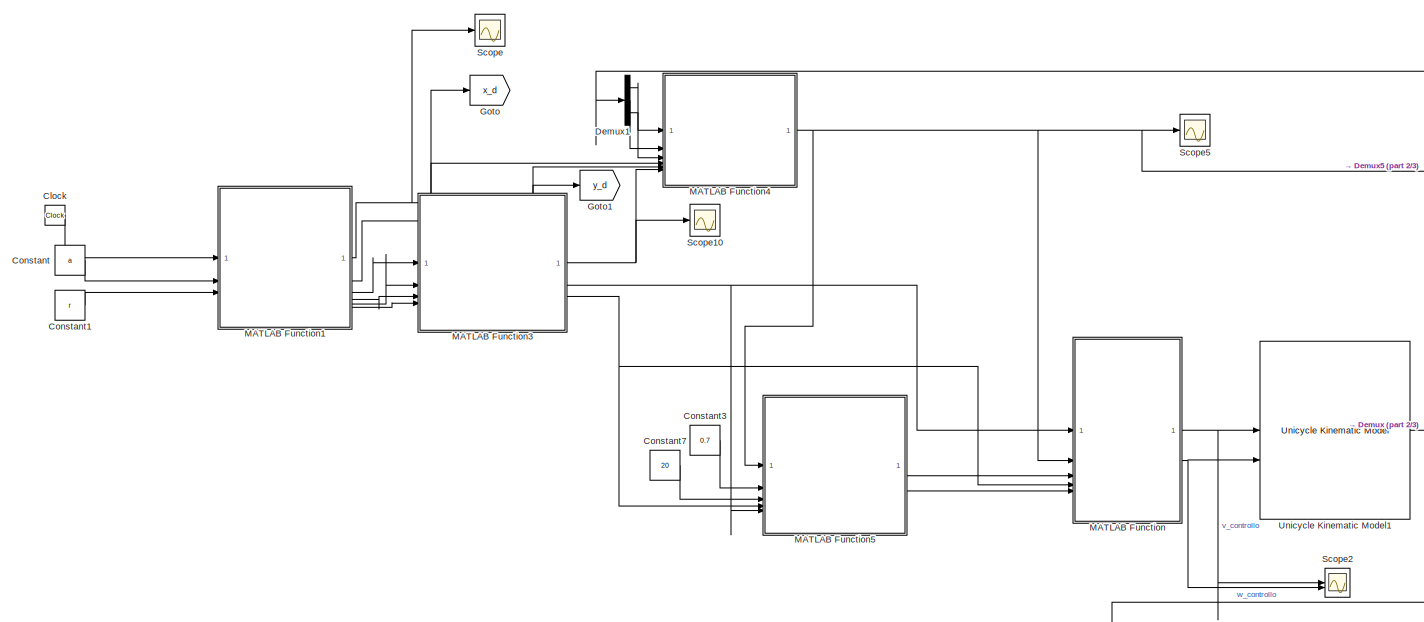
[diagram: root canvas - part 1/3, top left region]
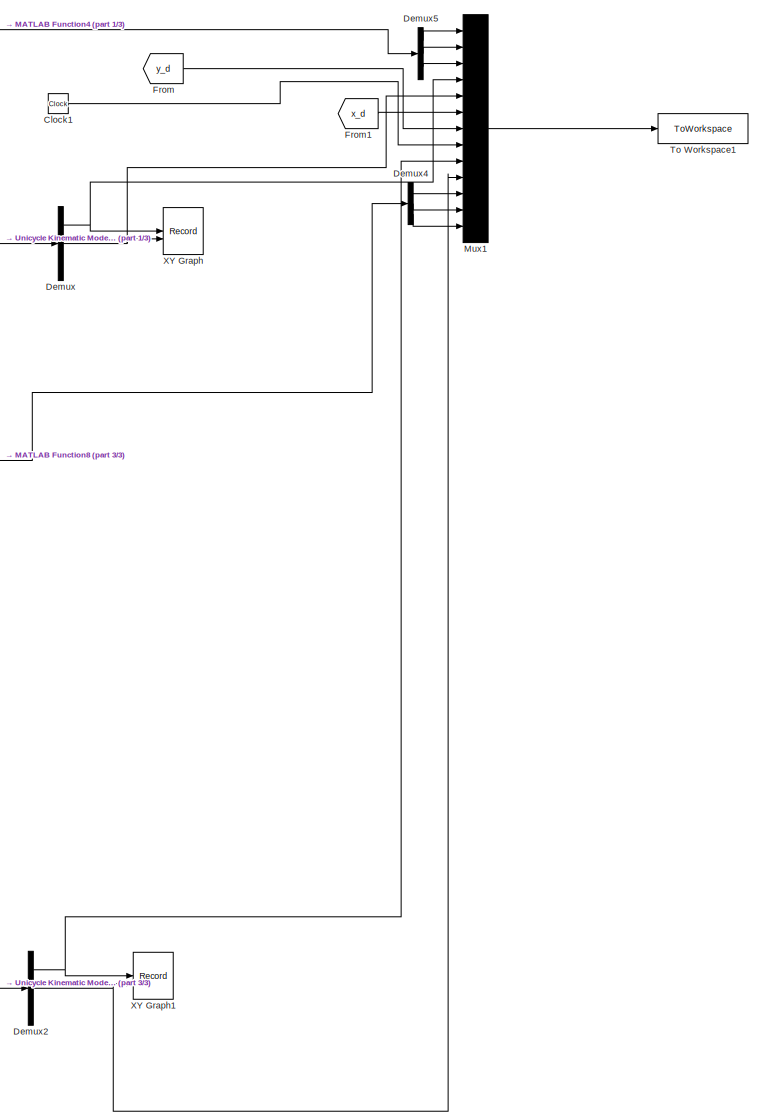
[diagram: root canvas - part 2/3, right side, full height]
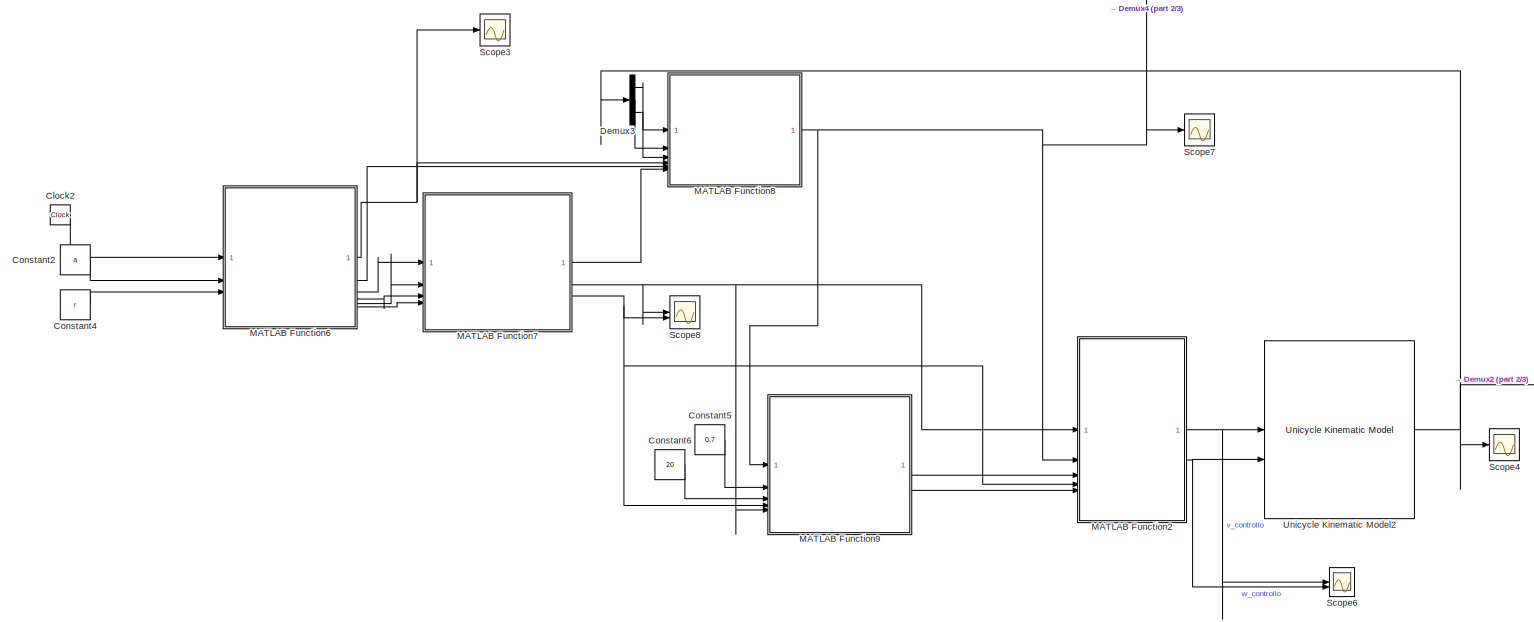
[diagram: root canvas - part 3/3, bottom center region]
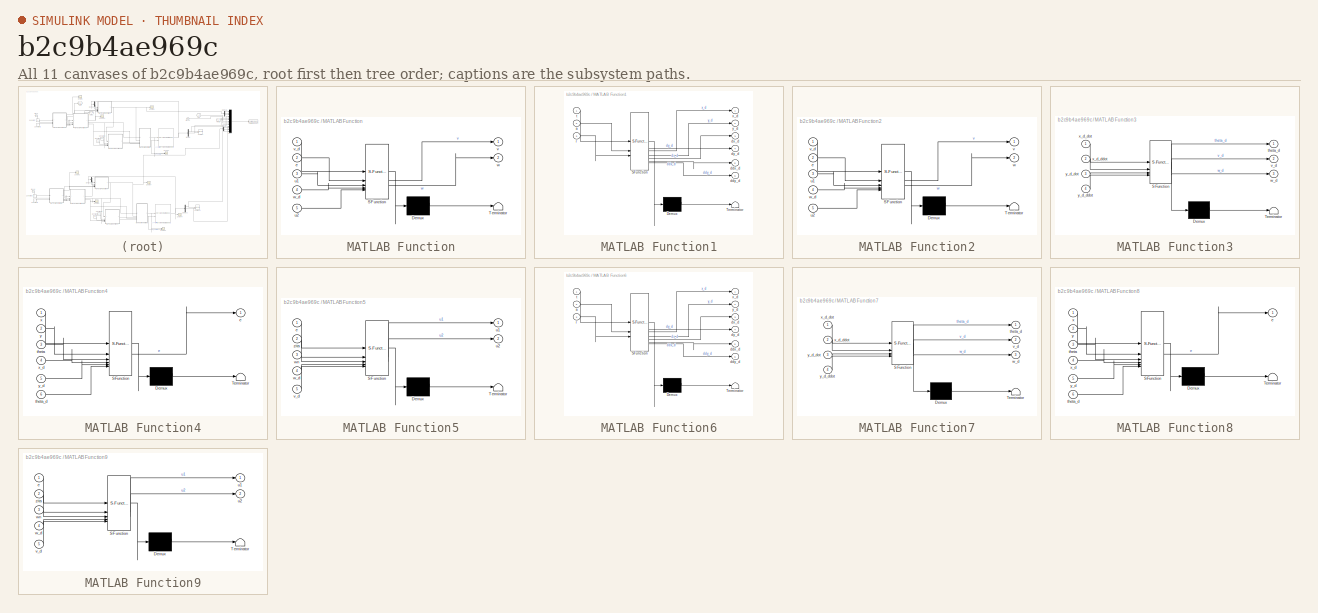
[diagram: thumbnail index - all 11 canvases of the model, root first then tree order]
MODEL slx_b2c9b4ae969c
KIND model
CONFIG AbsTol = auto
CONFIG EnableMultiTasking = off
CONFIG FixedStep = auto
CONFIG MaxStep = auto
CONFIG MinStep = auto
CONFIG RelTol = 1e-3
CONFIG SampleTimeConstraint = Unconstrained
CONFIG SolverName = VariableStepAuto
CONFIG StartTime = 0.0
CONFIG StopTime = 2*pi
BLOCK [Clock] Clock
BLOCK [Clock] Clock1
BLOCK [Clock] Clock2
BLOCK [Constant] Constant
  Value = a
BLOCK [Constant] Constant1
  Value = r
BLOCK [Constant] Constant2
  Value = a
BLOCK [Constant] Constant3
  Value = 0.7
BLOCK [Constant] Constant4
  Value = r
BLOCK [Constant] Constant5
  Value = 0.7
BLOCK [Constant] Constant6
  Value = 20
BLOCK [Constant] Constant7
  Value = 20
BLOCK [Demux] Demux
  Outputs = 3
BLOCK [Demux] Demux1
  NameLocation = right
  Outputs = 3
BLOCK [Demux] Demux2
  Outputs = 3
BLOCK [Demux] Demux3
  NameLocation = right
  Outputs = 3
BLOCK [Demux] Demux4
  NameLocation = right
  Outputs = 3
BLOCK [Demux] Demux5
  NameLocation = right
  Outputs = 3
BLOCK [From] From
  GotoTag = y_d
BLOCK [From] From1
  GotoTag = x_d
BLOCK [Goto] Goto
  GotoTag = x_d
BLOCK [Goto] Goto1
  GotoTag = y_d
BLOCK [SubSystem] MATLAB Function
  ErrorFcn = Stateflow.Translate.translate
  PermitHierarchicalResolution = ExplicitOnly
  SFBlockType = MATLAB Function
  TreatAsAtomicUnit = on
BLOCK [Demux] MATLAB Function/ Demux 
  Outputs = 1
BLOCK [S-Function] MATLAB Function/ SFunction 
  EnableBusSupport = on
  FunctionName = sf_sfun
  PortCounts = [5 3]
  SFcnIsStateOwnerBlock = off
  SFunctionDeploymentMode = off
  Tag = Stateflow S-Function 2
BLOCK [Terminator] MATLAB Function/ Terminator 
BLOCK [Inport] MATLAB Function/e
  Port = 2
BLOCK [Inport] MATLAB Function/u1
  Port = 3
BLOCK [Inport] MATLAB Function/u2
  Port = 5
BLOCK [Outport] MATLAB Function/v
BLOCK [Inport] MATLAB Function/v_d
BLOCK [Outport] MATLAB Function/w
  Port = 2
BLOCK [Inport] MATLAB Function/w_d
  Port = 4
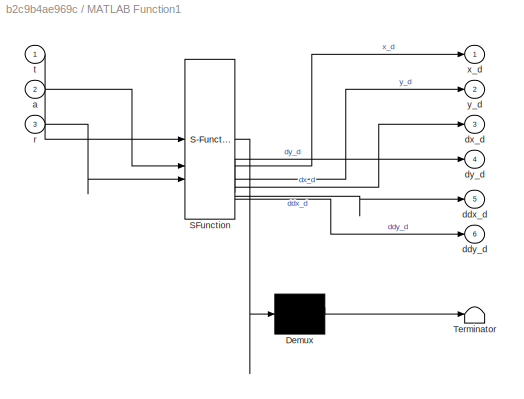
BLOCK [SubSystem] MATLAB Function1
  ErrorFcn = Stateflow.Translate.translate
  PermitHierarchicalResolution = ExplicitOnly
  SFBlockType = MATLAB Function
  TreatAsAtomicUnit = on
BLOCK [Demux] MATLAB Function1/ Demux 
  Outputs = 1
BLOCK [S-Function] MATLAB Function1/ SFunction 
  EnableBusSupport = on
  FunctionName = sf_sfun
  PortCounts = [3 7]
  SFcnIsStateOwnerBlock = off
  SFunctionDeploymentMode = off
  Tag = Stateflow S-Function 1
BLOCK [Terminator] MATLAB Function1/ Terminator 
BLOCK [Inport] MATLAB Function1/a
  Port = 2
BLOCK [Outport] MATLAB Function1/ddx_d
  Port = 5
BLOCK [Outport] MATLAB Function1/ddy_d
  Port = 6
BLOCK [Outport] MATLAB Function1/dx_d
  Port = 3
BLOCK [Outport] MATLAB Function1/dy_d
  Port = 4
BLOCK [Inport] MATLAB Function1/r
  Port = 3
BLOCK [Inport] MATLAB Function1/t
BLOCK [Outport] MATLAB Function1/x_d
BLOCK [Outport] MATLAB Function1/y_d
  Port = 2
BLOCK [SubSystem] MATLAB Function2
  ErrorFcn = Stateflow.Translate.translate
  PermitHierarchicalResolution = ExplicitOnly
  SFBlockType = MATLAB Function
  TreatAsAtomicUnit = on
BLOCK [Demux] MATLAB Function2/ Demux 
  Outputs = 1
BLOCK [S-Function] MATLAB Function2/ SFunction 
  EnableBusSupport = on
  FunctionName = sf_sfun
  PortCounts = [5 3]
  SFcnIsStateOwnerBlock = off
  SFunctionDeploymentMode = off
  Tag = Stateflow S-Function 3
BLOCK [Terminator] MATLAB Function2/ Terminator 
BLOCK [Inport] MATLAB Function2/e
  Port = 2
BLOCK [Inport] MATLAB Function2/u1
  Port = 3
BLOCK [Inport] MATLAB Function2/u2
  Port = 5
BLOCK [Outport] MATLAB Function2/v
BLOCK [Inport] MATLAB Function2/v_d
BLOCK [Outport] MATLAB Function2/w
  Port = 2
BLOCK [Inport] MATLAB Function2/w_d
  Port = 4
BLOCK [SubSystem] MATLAB Function3
  ErrorFcn = Stateflow.Translate.translate
  PermitHierarchicalResolution = ExplicitOnly
  SFBlockType = MATLAB Function
  TreatAsAtomicUnit = on
BLOCK [Demux] MATLAB Function3/ Demux 
  Outputs = 1
BLOCK [S-Function] MATLAB Function3/ SFunction 
  EnableBusSupport = on
  FunctionName = sf_sfun
  PortCounts = [4 4]
  SFcnIsStateOwnerBlock = off
  SFunctionDeploymentMode = off
  Tag = Stateflow S-Function 4
BLOCK [Terminator] MATLAB Function3/ Terminator 
BLOCK [Outport] MATLAB Function3/theta_d
BLOCK [Outport] MATLAB Function3/v_d
  Port = 2
BLOCK [Outport] MATLAB Function3/w_d
  Port = 3
BLOCK [Inport] MATLAB Function3/x_d_ddot
  Port = 2
BLOCK [Inport] MATLAB Function3/x_d_dot
BLOCK [Inport] MATLAB Function3/y_d_ddot
  Port = 4
BLOCK [Inport] MATLAB Function3/y_d_dot
  Port = 3
BLOCK [SubSystem] MATLAB Function4
  ErrorFcn = Stateflow.Translate.translate
  PermitHierarchicalResolution = ExplicitOnly
  SFBlockType = MATLAB Function
  TreatAsAtomicUnit = on
BLOCK [Demux] MATLAB Function4/ Demux 
  Outputs = 1
BLOCK [S-Function] MATLAB Function4/ SFunction 
  EnableBusSupport = on
  FunctionName = sf_sfun
  PortCounts = [6 2]
  SFcnIsStateOwnerBlock = off
  SFunctionDeploymentMode = off
  Tag = Stateflow S-Function 5
BLOCK [Terminator] MATLAB Function4/ Terminator 
BLOCK [Outport] MATLAB Function4/e
BLOCK [Inport] MATLAB Function4/theta
  Port = 3
BLOCK [Inport] MATLAB Function4/theta_d
  Port = 6
BLOCK [Inport] MATLAB Function4/x
BLOCK [Inport] MATLAB Function4/x_d
  Port = 4
BLOCK [Inport] MATLAB Function4/y
  Port = 2
BLOCK [Inport] MATLAB Function4/y_d
  Port = 5
BLOCK [SubSystem] MATLAB Function5
  ErrorFcn = Stateflow.Translate.translate
  PermitHierarchicalResolution = ExplicitOnly
  SFBlockType = MATLAB Function
  TreatAsAtomicUnit = on
BLOCK [Demux] MATLAB Function5/ Demux 
  Outputs = 1
BLOCK [S-Function] MATLAB Function5/ SFunction 
  EnableBusSupport = on
  FunctionName = sf_sfun
  PortCounts = [5 3]
  SFcnIsStateOwnerBlock = off
  SFunctionDeploymentMode = off
  Tag = Stateflow S-Function 6
BLOCK [Terminator] MATLAB Function5/ Terminator 
BLOCK [Inport] MATLAB Function5/e
BLOCK [Outport] MATLAB Function5/u1
BLOCK [Outport] MATLAB Function5/u2
  Port = 2
BLOCK [Inport] MATLAB Function5/v_d
  Port = 5
BLOCK [Inport] MATLAB Function5/w_d
  Port = 4
BLOCK [Inport] MATLAB Function5/wn
  Port = 3
BLOCK [Inport] MATLAB Function5/zita
  Port = 2
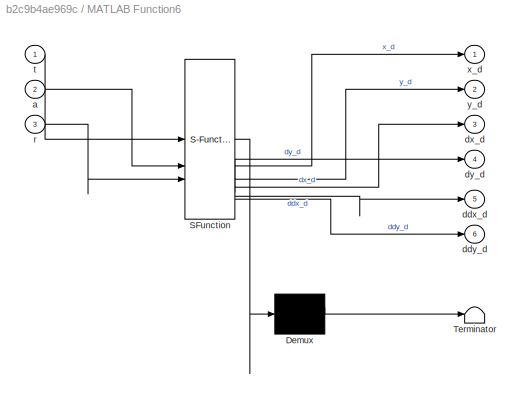
BLOCK [SubSystem] MATLAB Function6
  ErrorFcn = Stateflow.Translate.translate
  PermitHierarchicalResolution = ExplicitOnly
  SFBlockType = MATLAB Function
  TreatAsAtomicUnit = on
BLOCK [Demux] MATLAB Function6/ Demux 
  Outputs = 1
BLOCK [S-Function] MATLAB Function6/ SFunction 
  EnableBusSupport = on
  FunctionName = sf_sfun
  PortCounts = [3 7]
  SFcnIsStateOwnerBlock = off
  SFunctionDeploymentMode = off
  Tag = Stateflow S-Function 7
BLOCK [Terminator] MATLAB Function6/ Terminator 
BLOCK [Inport] MATLAB Function6/a
  Port = 2
BLOCK [Outport] MATLAB Function6/ddx_d
  Port = 5
BLOCK [Outport] MATLAB Function6/ddy_d
  Port = 6
BLOCK [Outport] MATLAB Function6/dx_d
  Port = 3
BLOCK [Outport] MATLAB Function6/dy_d
  Port = 4
BLOCK [Inport] MATLAB Function6/r
  Port = 3
BLOCK [Inport] MATLAB Function6/t
BLOCK [Outport] MATLAB Function6/x_d
BLOCK [Outport] MATLAB Function6/y_d
  Port = 2
BLOCK [SubSystem] MATLAB Function7
  ErrorFcn = Stateflow.Translate.translate
  PermitHierarchicalResolution = ExplicitOnly
  SFBlockType = MATLAB Function
  TreatAsAtomicUnit = on
BLOCK [Demux] MATLAB Function7/ Demux 
  Outputs = 1
BLOCK [S-Function] MATLAB Function7/ SFunction 
  EnableBusSupport = on
  FunctionName = sf_sfun
  PortCounts = [4 4]
  SFcnIsStateOwnerBlock = off
  SFunctionDeploymentMode = off
  Tag = Stateflow S-Function 8
BLOCK [Terminator] MATLAB Function7/ Terminator 
BLOCK [Outport] MATLAB Function7/theta_d
BLOCK [Outport] MATLAB Function7/v_d
  Port = 2
BLOCK [Outport] MATLAB Function7/w_d
  Port = 3
BLOCK [Inport] MATLAB Function7/x_d_ddot
  Port = 2
BLOCK [Inport] MATLAB Function7/x_d_dot
BLOCK [Inport] MATLAB Function7/y_d_ddot
  Port = 4
BLOCK [Inport] MATLAB Function7/y_d_dot
  Port = 3
BLOCK [SubSystem] MATLAB Function8
  ErrorFcn = Stateflow.Translate.translate
  PermitHierarchicalResolution = ExplicitOnly
  SFBlockType = MATLAB Function
  TreatAsAtomicUnit = on
BLOCK [Demux] MATLAB Function8/ Demux 
  Outputs = 1
BLOCK [S-Function] MATLAB Function8/ SFunction 
  EnableBusSupport = on
  FunctionName = sf_sfun
  PortCounts = [6 2]
  SFcnIsStateOwnerBlock = off
  SFunctionDeploymentMode = off
  Tag = Stateflow S-Function 9
BLOCK [Terminator] MATLAB Function8/ Terminator 
BLOCK [Outport] MATLAB Function8/e
BLOCK [Inport] MATLAB Function8/theta
  Port = 3
BLOCK [Inport] MATLAB Function8/theta_d
  Port = 6
BLOCK [Inport] MATLAB Function8/x
BLOCK [Inport] MATLAB Function8/x_d
  Port = 4
BLOCK [Inport] MATLAB Function8/y
  Port = 2
BLOCK [Inport] MATLAB Function8/y_d
  Port = 5
BLOCK [SubSystem] MATLAB Function9
  ErrorFcn = Stateflow.Translate.translate
  PermitHierarchicalResolution = ExplicitOnly
  SFBlockType = MATLAB Function
  TreatAsAtomicUnit = on
BLOCK [Demux] MATLAB Function9/ Demux 
  Outputs = 1
BLOCK [S-Function] MATLAB Function9/ SFunction 
  EnableBusSupport = on
  FunctionName = sf_sfun
  PortCounts = [5 3]
  SFcnIsStateOwnerBlock = off
  SFunctionDeploymentMode = off
  Tag = Stateflow S-Function 10
BLOCK [Terminator] MATLAB Function9/ Terminator 
BLOCK [Inport] MATLAB Function9/e
BLOCK [Outport] MATLAB Function9/u1
BLOCK [Outport] MATLAB Function9/u2
  Port = 2
BLOCK [Inport] MATLAB Function9/v_d
  Port = 5
BLOCK [Inport] MATLAB Function9/w_d
  Port = 4
BLOCK [Inport] MATLAB Function9/wn
  Port = 3
BLOCK [Inport] MATLAB Function9/zita
  Port = 2
BLOCK [Mux] Mux1
  DisplayOption = bar
  Inputs = 13
BLOCK [Scope] Scope
  Floating = off
  NumInputPorts = 1
  ScopeSpecificationString = Simulink.scopes.TimeScopeBlockCfg('CurrentConfiguration', extmgr.ConfigurationSet(extmgr.Configuration('Core','General UI',true),extmgr.Configuration('Core','Source UI',true),extmgr.Configuration('Sources','WiredSimulink',true,'DataLoggingVariableName','ScopeData1'),extmgr.Configuration('Visuals','Time Domain',true,'SerializedDisplays',{struct('MinYLimReal','-3.74949','MaxYLimReal','3.74994','YLab...<+1511ch>
BLOCK [Scope] Scope10
  Floating = off
  NumInputPorts = 1
  ScopeSpecificationString = Simulink.scopes.TimeScopeBlockCfg('CurrentConfiguration', extmgr.ConfigurationSet(extmgr.Configuration('Core','General UI',true),extmgr.Configuration('Core','Source UI',true),extmgr.Configuration('Sources','WiredSimulink',true,'DataLoggingVariableName','ScopeData2'),extmgr.Configuration('Visuals','Time Domain',true,'SerializedDisplays',{struct('MinYLimReal','-3.92375','MaxYLimReal','3.91632','YLab...<+1515ch>
BLOCK [Scope] Scope2
  Floating = off
  NumInputPorts = 2
  ScopeSpecificationString = Simulink.scopes.TimeScopeBlockCfg('CurrentConfiguration', extmgr.ConfigurationSet(extmgr.Configuration('Core','General UI',true),extmgr.Configuration('Core','Source UI',true),extmgr.Configuration('Sources','WiredSimulink',true,'DataLoggingVariableName','ScopeData2'),extmgr.Configuration('Visuals','Time Domain',true,'SerializedDisplays',{struct('MinYLimReal','-212.90246','MaxYLimReal','212.44856','...<+1699ch>
BLOCK [Scope] Scope3
  Floating = off
  NumInputPorts = 1
  ScopeSpecificationString = Simulink.scopes.TimeScopeBlockCfg('CurrentConfiguration', extmgr.ConfigurationSet(extmgr.Configuration('Core','General UI',true),extmgr.Configuration('Core','Source UI',true),extmgr.Configuration('Sources','WiredSimulink',true,'DataLoggingVariableName','ScopeData2'),extmgr.Configuration('Visuals','Time Domain',true,'SerializedDisplays',{struct('MinYLimReal','-3.74221','MaxYLimReal','3.74913','YLab...<+1511ch>
BLOCK [Scope] Scope4
  Floating = off
  NumInputPorts = 1
  ScopeSpecificationString = Simulink.scopes.TimeScopeBlockCfg('CurrentConfiguration', extmgr.ConfigurationSet(extmgr.Configuration('Core','General UI',true),extmgr.Configuration('Core','Source UI',true),extmgr.Configuration('Sources','WiredSimulink',true,'DataLoggingVariableName','ScopeData3'),extmgr.Configuration('Visuals','Time Domain',true,'SerializedDisplays',{struct('MinYLimReal','-18.37204','MaxYLimReal','3.89064','YLa...<+1644ch>
BLOCK [Scope] Scope5
  Floating = off
  NumInputPorts = 1
  ScopeSpecificationString = Simulink.scopes.TimeScopeBlockCfg('CurrentConfiguration', extmgr.ConfigurationSet(extmgr.Configuration('Core','General UI',true),extmgr.Configuration('Core','Source UI',true),extmgr.Configuration('Sources','WiredSimulink',true,'DataLoggingVariableName','ScopeData2'),extmgr.Configuration('Visuals','Time Domain',true,'SerializedDisplays',{struct('MinYLimReal','-7.53406','MaxYLimReal','7.49261','YLab...<+1687ch>
BLOCK [Scope] Scope6
  Floating = off
  NumInputPorts = 2
  ScopeSpecificationString = Simulink.scopes.TimeScopeBlockCfg('CurrentConfiguration', extmgr.ConfigurationSet(extmgr.Configuration('Core','General UI',true),extmgr.Configuration('Core','Source UI',true),extmgr.Configuration('Sources','WiredSimulink',true,'DataLoggingVariableName','ScopeData4'),extmgr.Configuration('Visuals','Time Domain',true,'SerializedDisplays',{struct('MinYLimReal','-89.11192','MaxYLimReal','98.52495','YL...<+1691ch>
BLOCK [Scope] Scope7
  Floating = off
  NumInputPorts = 1
  ScopeSpecificationString = Simulink.scopes.TimeScopeBlockCfg('CurrentConfiguration', extmgr.ConfigurationSet(extmgr.Configuration('Core','General UI',true),extmgr.Configuration('Core','Source UI',true),extmgr.Configuration('Sources','WiredSimulink',true,'DataLoggingVariableName','ScopeData5'),extmgr.Configuration('Visuals','Time Domain',true,'SerializedDisplays',{struct('MinYLimReal','-7.4324','MaxYLimReal','7.44201','YLabe...<+1685ch>
BLOCK [Scope] Scope8
  Floating = off
  NumInputPorts = 2
  ScopeSpecificationString = Simulink.scopes.TimeScopeBlockCfg('CurrentConfiguration', extmgr.ConfigurationSet(extmgr.Configuration('Core','General UI',true),extmgr.Configuration('Core','Source UI',true),extmgr.Configuration('Sources','WiredSimulink',true,'DataLoggingVariableName','ScopeData6'),extmgr.Configuration('Visuals','Time Domain',true),extmgr.Configuration('Tools','Plot Navigation',true),extmgr.Configuration('Tools',...<+40ch>
BLOCK [ToWorkspace] To Workspace1
  FixptAsFi = on
  MaxDataPoints = inf
  SampleTime = -1
  VariableName = out1
BLOCK [Reference] Unicycle Kinematic Model1  REF=robotmobilelib/Unicycle Kinematic Model
  SourceBlock = robotmobilelib/Unicycle Kinematic Model
  SourceType = Unicycle Kinematic Model
BLOCK [Reference] Unicycle Kinematic Model2  REF=robotmobilelib/Unicycle Kinematic Model
  SourceBlock = robotmobilelib/Unicycle Kinematic Model
  SourceType = Unicycle Kinematic Model
BLOCK [Record] XY Graph
  CompatibilityTag = XY
  FileSettingsInternal = {"entries":[{"content":{"excelSettings":{"content":{},"type":"Streamout.ExcelSettings"}},"type":"Streamout.FileSettingStorage","uuid":""}],"packageUris":["http:\/\/schema.mathworks.com\/mf0\/streamout_blocks\/R2020a"],"version":"1.0"}
  Layout = [1 1]
  SignalsInternal = {"entries":[{"content":{"signals":[{"content":{"blockPath":[],"dimensions":[1],"domain":"","lineColor":"#0072bd","lineWidth":2,"port":1,"sid":[""],"signalID":1,"signalName":"Demux:1"},"type":"RecordBlkView.Signal","uuid":""},{"content":{"blockPath":[],"dimensions":[1],"domain":"","lineColor":"#d95319","lineWidth":2,"port":2,"sid":[""],"signalID":2,"signalName":"Demux:2"},"type":"RecordBlkView.Sign...<+160ch>
  VisualizationBindings = {"xyplotplugin":{"info":[{"series":[],"subplotID":1}]}}
BLOCK [Record] XY Graph1
  CompatibilityTag = XY
  FileSettingsInternal = {"entries":[{"content":{"excelSettings":{"content":{},"type":"Streamout.ExcelSettings"}},"type":"Streamout.FileSettingStorage","uuid":""}],"packageUris":["http:\/\/schema.mathworks.com\/mf0\/streamout_blocks\/R2020a"],"version":"1.0"}
  Layout = [1 1]
  SignalsInternal = {"entries":[{"content":{"signals":[{"content":{"blockPath":[],"dimensions":[1],"domain":"","lineColor":"#a2142f","plots":[ 1 ],"port":1,"sid":[""],"signalID":1,"signalName":"Demux2:1"},"type":"RecordBlkView.Signal","uuid":""},{"content":{"blockPath":[],"dimensions":[1],"domain":"","lineColor":"#139fff","plots":[ 1 ],"port":2,"sid":[""],"signalID":2,"signalName":"Demux2:2"},"type":"RecordBlkView.Si...<+162ch>
  VisualizationBindings = {"xyplotplugin":{"info":[{"series":[{"bindingParametersList":[{"parameter":"X-Axis","signalID":1,"signalName":"Demux2:1"},{"parameter":"Y-Axis","signalID":2,"signalName":"Demux2:2"}],"seriesID":0}],"subplotID":1}]}}
LINE Clock1:1 -> Mux1:8
LINE Clock2:1 -> MATLAB Function6:1
LINE Clock:1 -> MATLAB Function1:1
LINE Constant1:1 -> MATLAB Function1:3
LINE Constant2:1 -> MATLAB Function6:2
LINE Constant3:1 -> MATLAB Function5:2
LINE Constant4:1 -> MATLAB Function6:3
LINE Constant5:1 -> MATLAB Function9:2
LINE Constant6:1 -> MATLAB Function9:3
LINE Constant7:1 -> MATLAB Function5:3
LINE Constant:1 -> MATLAB Function1:2
LINE Demux1:1 -> MATLAB Function4:1
LINE Demux1:2 -> MATLAB Function4:2
LINE Demux1:3 -> MATLAB Function4:3
NET Demux2:1 -> Mux1:9, XY Graph1:1
NET Demux2:2 -> Mux1:10, XY Graph1:2
LINE Demux3:1 -> MATLAB Function8:1
LINE Demux3:2 -> MATLAB Function8:2
LINE Demux3:3 -> MATLAB Function8:3
LINE Demux4:1 -> Mux1:11
LINE Demux4:2 -> Mux1:12
LINE Demux4:3 -> Mux1:13
LINE Demux5:1 -> Mux1:1
LINE Demux5:2 -> Mux1:2
LINE Demux5:3 -> Mux1:3
NET Demux:1 -> Mux1:4, XY Graph:1
NET Demux:2 -> Mux1:5, XY Graph:2
LINE From1:1 -> Mux1:6
LINE From:1 -> Mux1:7
NET MATLAB Function1:1 -> Goto:1, MATLAB Function4:4, Scope:1
NET MATLAB Function1:2 -> Goto1:1, MATLAB Function4:5
LINE MATLAB Function1:3 -> MATLAB Function3:1
LINE MATLAB Function1:4 -> MATLAB Function3:3
LINE MATLAB Function1:5 -> MATLAB Function3:2
LINE MATLAB Function1:6 -> MATLAB Function3:4
NET MATLAB Function2:1 -> Scope6:1, Unicycle Kinematic Model2:1
NET MATLAB Function2:2 -> Scope6:2, Unicycle Kinematic Model2:2
NET MATLAB Function3:1 -> MATLAB Function4:6, Scope10:1
NET MATLAB Function3:2 -> MATLAB Function5:5, MATLAB Function:1
NET MATLAB Function3:3 -> MATLAB Function5:4, MATLAB Function:4
NET MATLAB Function4:1 -> Demux5:1, MATLAB Function5:1, MATLAB Function:2, Scope5:1
LINE MATLAB Function5:1 -> MATLAB Function:3
LINE MATLAB Function5:2 -> MATLAB Function:5
NET MATLAB Function6:1 -> MATLAB Function8:4, Scope3:1
LINE MATLAB Function6:2 -> MATLAB Function8:5
LINE MATLAB Function6:3 -> MATLAB Function7:1
LINE MATLAB Function6:4 -> MATLAB Function7:3
LINE MATLAB Function6:5 -> MATLAB Function7:2
LINE MATLAB Function6:6 -> MATLAB Function7:4
LINE MATLAB Function7:1 -> MATLAB Function8:6
NET MATLAB Function7:2 -> MATLAB Function2:1, MATLAB Function9:5, Scope8:1
NET MATLAB Function7:3 -> MATLAB Function2:4, MATLAB Function9:4, Scope8:2
NET MATLAB Function8:1 -> Demux4:1, MATLAB Function2:2, MATLAB Function9:1, Scope7:1
LINE MATLAB Function9:1 -> MATLAB Function2:3
LINE MATLAB Function9:2 -> MATLAB Function2:5
NET MATLAB Function:1 -> Scope2:1, Unicycle Kinematic Model1:1
NET MATLAB Function:2 -> Scope2:2, Unicycle Kinematic Model1:2
LINE Mux1:1 -> To Workspace1:1
NET Unicycle Kinematic Model1:1 -> Demux1:1, Demux:1
NET Unicycle Kinematic Model2:1 -> Demux2:1, Demux3:1, Scope4:1
note: NET lines group one-source signal fan-out (src -> all destinations, sorted); 1:1 wires keep LINE
CHART MATLAB Function7 states=1 transitions=1
  STATE_LABEL 'eML_blk_kernel()'
  STATE_LABEL 'SCRIPT:\nfunction [theta_d,v_d,w_d] = fcn_1(x_d_dot,x_d_ddot,y_d_dot,y_d_ddot)\n\n    theta_d = atan2(y_d_dot, x_d_dot);\n    v_d = sqrt(x_d_dot^2 + y_d_dot^2);\n    w_d = (y_d_ddot* x_d_dot - x_d_ddot .* y_d_dot) ./ ((x_d_dot).^2 + (y_d_dot).^2);'
CHART MATLAB Function8 states=1 transitions=1
  STATE_LABEL 'eML_blk_kernel()'
  STATE_LABEL "SCRIPT:\nfunction e = fcn_2(x,y,theta,x_d,y_d,theta_d)\n\nT=[cos(theta) sin(theta) 0\n   -sin(theta) cos(theta) 0\n    0 0 1];\n\nq=[x,y,theta];\nq_d=[x_d,y_d,theta_d];\n\n\ne=T*(q_d-q)';\n"
CHART MATLAB Function9 states=1 transitions=1
  STATE_LABEL 'eML_blk_kernel()'
  STATE_LABEL 'SCRIPT:\nfunction [u1,u2] = fcn_3(e,zita,wn,w_d,v_d)\n\n\nk1=2*zita*wn;\nk2=(wn^2);\nk3=2*zita*wn;\n\nu1=-k1*e(1);\nu2=-k2*v_d*sin(e(3))*e(2)/e(3)-k3*e(3);'
CHART MATLAB Function1 states=1 transitions=1
  STATE_LABEL 'eML_blk_kernel()'
  STATE_LABEL 'SCRIPT:\nfunction [x_d, y_d, dx_d, dy_d, ddx_d, ddy_d] = bernoulli_traj_full(t, a, r)\n% Traiettoria lemniscata di Bernoulli con derivate prima e seconda\n\n\nif t>4*pi/(a+1)\nt=4*pi/(a+1);\nend\n\nomega = a + 1;\ns = sin(omega * t);\nc = cos(omega * t);\nD = 1 + s^2;\nD2 = D^2;\nD3 = D^3;\n\n% Posizione\nx_d = r * c / D;\ny_d = r * c * s / D;\n\n% Derivate prime\nnum_dx = -omega * s * D + (-omega * c) * (2 * s * c);\n...<+698ch>'
CHART MATLAB Function states=1 transitions=1
  STATE_LABEL 'eML_blk_kernel()'
  STATE_LABEL 'SCRIPT:\nfunction [v,w] = fcn_4(v_d,e,u1,w_d,u2)\n\nv=v_d*cos(e(3))-u1;\nw=w_d-u2;\n'
CHART MATLAB Function2 states=1 transitions=1
  STATE_LABEL 'eML_blk_kernel()'
  STATE_LABEL 'SCRIPT:\nfunction [v,w] = fcn_4(v_d,e,u1,w_d,u2)\n\nv=v_d*cos(e(3))-u1;\nw=w_d-u2;\n'
CHART MATLAB Function3 states=1 transitions=1
  STATE_LABEL 'eML_blk_kernel()'
  STATE_LABEL 'SCRIPT:\nfunction [theta_d,v_d,w_d] = fcn_1(x_d_dot,x_d_ddot,y_d_dot,y_d_ddot)\n\n    theta_d = atan2(y_d_dot, x_d_dot);\n    v_d = sqrt(x_d_dot^2 + y_d_dot^2);\n    w_d = (y_d_ddot* x_d_dot - x_d_ddot .* y_d_dot) ./ ((x_d_dot).^2 + (y_d_dot).^2);'
CHART MATLAB Function4 states=1 transitions=1
  STATE_LABEL 'eML_blk_kernel()'
  STATE_LABEL "SCRIPT:\nfunction e = fcn_2(x,y,theta,x_d,y_d,theta_d)\n\nT=[cos(theta) sin(theta) 0\n   -sin(theta) cos(theta) 0\n    0 0 1];\n\nq=[x,y,theta];\nq_d=[x_d,y_d,theta_d];\n\n\ne=T*(q_d-q)';\n"
CHART MATLAB Function5 states=1 transitions=1
  STATE_LABEL 'eML_blk_kernel()'
  STATE_LABEL 'SCRIPT:\nfunction [u1,u2] = fcn_3(e,zita,wn,w_d,v_d)\n\n\nk1=2*zita*wn;\nk2=(wn^2-w_d)/v_d;\nk3=2*zita*wn;\n\nu1=-k1*e(1);\nu2=-k2*e(2)-k3*e(3);'
CHART MATLAB Function6 states=1 transitions=1
  STATE_LABEL 'eML_blk_kernel()'
  STATE_LABEL 'SCRIPT:\nfunction [x_d, y_d, dx_d, dy_d, ddx_d, ddy_d] = bernoulli_traj_full(t, a, r)\n% Traiettoria lemniscata di Bernoulli con derivate prima e seconda\n\n\nif t>4*pi/(a+1)\nt=4*pi/(a+1);\nend\n\nomega = a + 1;\ns = sin(omega * t);\nc = cos(omega * t);\nD = 1 + s^2;\nD2 = D^2;\nD3 = D^3;\n\n% Posizione\nx_d = r * c / D;\ny_d = r * c * s / D;\n\n% Derivate prime\nnum_dx = -omega * s * D + (-omega * c) * (2 * s * c);\n...<+761ch>'
CHART  states=0 transitions=0
CHART  states=0 transitions=0
CHART  states=0 transitions=0
CHART  states=0 transitions=0
CHART  states=0 transitions=0
CHART  states=0 transitions=0
CHART  states=0 transitions=0
CHART  states=0 transitions=0
CHART  states=0 transitions=0
CHART  states=0 transitions=0
